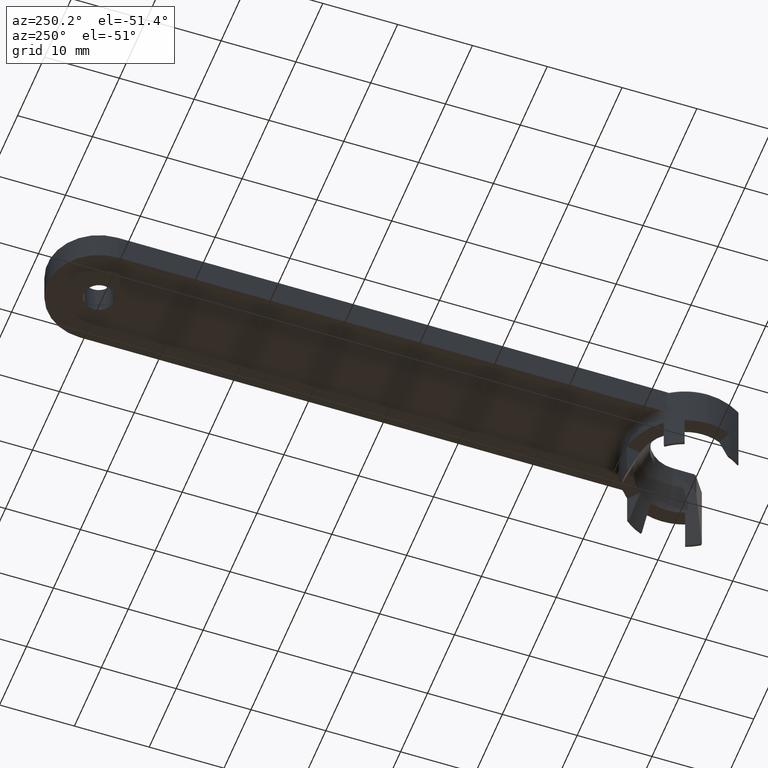
[diagram: clean part render]
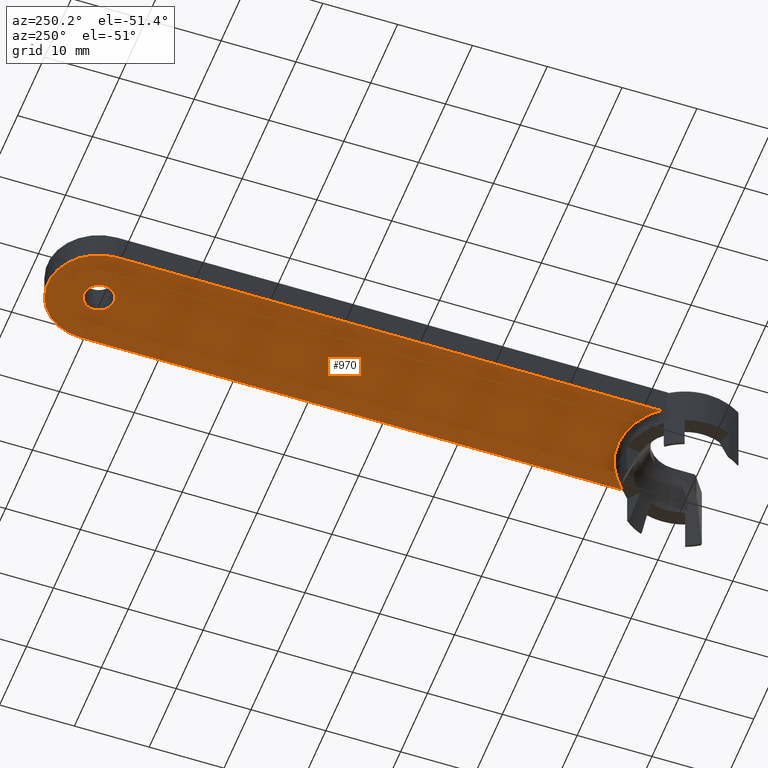
[diagram: same view with one face highlighted and labeled with its STEP entity id]
A machine part, auxiliary view. The second image highlights one B-rep face of the part: STEP entity #970.
In plain terms, the highlighted planar face has unit normal (0, 0, 1).
Its self-contained STEP definition (entity closure, byte-faithful):
#6 = CIRCLE ( 'NONE', #1307, 6.850000000000000500 ) ;
#7 = CARTESIAN_POINT ( 'NONE',  ( -2.391606025375746300, 8.579360147467253800, -4.000000000000000000 ) ) ;
#16 = CARTESIAN_POINT ( 'NONE',  ( 0.3480322512875367300, 8.899978491960400400, -3.999999999999999100 ) ) ;
#35 = CARTESIAN_POINT ( 'NONE',  ( 4.212377540333079700, 7.840764803241903300, -4.000000000000000900 ) ) ;
#36 = CARTESIAN_POINT ( 'NONE',  ( 0.0000000000000000000, 78.33195793500000500, -4.000000000000000000 ) ) ;
#66 = VERTEX_POINT ( 'NONE', #211 ) ;
#69 = VERTEX_POINT ( 'NONE', #126 ) ;
#76 = EDGE_CURVE ( 'NONE', #1267, #774, #6, .T. ) ;
#79 = ORIENTED_EDGE ( 'NONE', *, *, #576, .F. ) ;
#90 = ORIENTED_EDGE ( 'NONE', *, *, #1729, .F. ) ;
#96 = CARTESIAN_POINT ( 'NONE',  ( -3.809812640516542900, 8.043461954156226700, -4.000000000000000900 ) ) ;
#108 = CARTESIAN_POINT ( 'NONE',  ( 0.0000000000000000000, 78.33195793500000500, -4.000000000000000000 ) ) ;
#126 = CARTESIAN_POINT ( 'NONE',  ( 6.849999999605628000, 5.682209071596507700, -4.000000000435521800 ) ) ;
#149 = CARTESIAN_POINT ( 'NONE',  ( 1.725712680964717200, 8.737949633788503000, -4.000000000000001800 ) ) ;
#174 = CARTESIAN_POINT ( 'NONE',  ( -1.213241456055927000, 8.818622504421494300, -4.000000000000000000 ) ) ;
#191 = CARTESIAN_POINT ( 'NONE',  ( 6.357202973045470000, 6.241257031835291800, -4.000000000000000900 ) ) ;
#209 = CARTESIAN_POINT ( 'NONE',  ( 0.0000000000000000000, 78.33195793500000500, -4.000000000000000000 ) ) ;
#211 = CARTESIAN_POINT ( 'NONE',  ( -2.000000000000000000, 78.33195793500000500, -4.000000000000000000 ) ) ;
#214 = DIRECTION ( 'NONE',  ( -0.0000000000000000000, 0.0000000000000000000, -1.000000000000000000 ) ) ;
#216 = CIRCLE ( 'NONE', #616, 2.000000000000000000 ) ;
#226 = VERTEX_POINT ( 'NONE', #289 ) ;
#232 = CARTESIAN_POINT ( 'NONE',  ( -4.668223199302228300, 7.589502870999931300, -4.000000000000000000 ) ) ;
#257 = CARTESIAN_POINT ( 'NONE',  ( -6.850000000000000500, 5.205210584000000500, -4.000000000000000000 ) ) ;
#259 = CARTESIAN_POINT ( 'NONE',  ( -5.357181086907920600, 7.107905588666076500, -3.999999999999999100 ) ) ;
#266 = CARTESIAN_POINT ( 'NONE',  ( 4.034120690082831500, 7.933313645107057600, -4.000000000000000000 ) ) ;
#289 = CARTESIAN_POINT ( 'NONE',  ( 2.000000000000000000, 78.33195793500000500, -4.000000000000000000 ) ) ;
#292 = CARTESIAN_POINT ( 'NONE',  ( -1.469513484128769400, 8.780837044612138000, -4.000000000000000900 ) ) ;
#297 = CARTESIAN_POINT ( 'NONE',  ( 6.849999999999999600, 78.33195793500000500, -4.000000000677499800 ) ) ;
#359 = EDGE_LOOP ( 'NONE', ( #90, #700 ) ) ;
#381 = B_SPLINE_CURVE_WITH_KNOTS ( 'NONE', 3,
 ( #506, #1234, #191, #1826, #973, #1448, #1683, #1171, #1689, #819, #1759, #1135, #35, #902, #266, #1835, #1409, #1280, #1361, #824, #1556, #552, #149, #422, #663, #16, #1716, #1582, #859, #1152, #174, #292, #1438, #687, #625, #7, #1160, #474, #1099, #96, #1302, #1187, #1379, #232, #873, #259, #1730, #1715, #1722, #656, #787, #499, #574 ),
 .UNSPECIFIED., .F., .F.,
 ( 4, 1, 1, 1, 1, 2, 2, 1, 1, 1, 2, 2, 1, 1, 2, 2, 2, 2, 2, 2, 1, 2, 2, 1, 1, 1, 2, 2, 1, 1, 1, 1, 2, 2, 4 ),
 ( 0.0000000000000000000, 0.06250000000000061100, 0.09375000000000091600, 0.1093750000000010700, 0.1171875000000010800, 0.1210937500000011500, 0.1250000000000012200, 0.1875000000000018000, 0.2187500000000020800, 0.2343750000000022200, 0.2421875000000022200, 0.2500000000000022200, 0.3125000000000017800, 0.3437500000000015000, 0.3593750000000013900, 0.3750000000000012800, 0.4375000000000008900, 0.5000000000000004400, 0.5312500000000003300, 0.5625000000000000000, 0.5937499999999997800, 0.6093749999999997800, 0.6249999999999996700, 0.6874999999999991100, 0.7187499999999988900, 0.7343749999999988900, 0.7421874999999987800, 0.7499999999999987800, 0.8124999999999995600, 0.8437500000000000000, 0.8593750000000003300, 0.8671875000000004400, 0.8710937500000006700, 0.8750000000000007800, 1.000000000000000000 ),
 .UNSPECIFIED. ) ;
#391 = DIRECTION ( 'NONE',  ( 1.000000000000000000, 0.0000000000000000000, 0.0000000000000000000 ) ) ;
#395 = VERTEX_POINT ( 'NONE', #1057 ) ;
#422 = CARTESIAN_POINT ( 'NONE',  ( 1.387241542657224200, 8.798085349761571200, -4.000000000000000000 ) ) ;
#474 = CARTESIAN_POINT ( 'NONE',  ( -3.424952198055320400, 8.217767997586861400, -4.000000000000000900 ) ) ;
#499 = CARTESIAN_POINT ( 'NONE',  ( -6.468186086857711500, 6.142492264413063700, -3.999999999999999100 ) ) ;
#506 = CARTESIAN_POINT ( 'NONE',  ( 6.849999999605628000, 5.682209071596507700, -4.000000000435521800 ) ) ;
#550 = CARTESIAN_POINT ( 'NONE',  ( 6.850000000000000500, 41.10540386449999800, -4.000000001354999700 ) ) ;
#552 = CARTESIAN_POINT ( 'NONE',  ( 2.146011970985660000, 8.637824142578054400, -3.999999999999999100 ) ) ;
#574 = CARTESIAN_POINT ( 'NONE',  ( -6.849999999605629800, 5.682209071596507700, -4.000000000435521800 ) ) ;
#576 = EDGE_CURVE ( 'NONE', #1267, #395, #1326, .T. ) ;
#581 = VECTOR ( 'NONE', #1165, 1000.000000000000000 ) ;
#616 = AXIS2_PLACEMENT_3D ( 'NONE', #108, #696, #391 ) ;
#625 = CARTESIAN_POINT ( 'NONE',  ( -1.979538634882903200, 8.677471514158364500, -4.000000000000000000 ) ) ;
#644 = DIRECTION ( 'NONE',  ( 0.0000000000000000000, 0.0000000000000000000, 1.000000000000000000 ) ) ;
#656 = CARTESIAN_POINT ( 'NONE',  ( -5.564161336005820000, 6.946253488742897300, -4.000000000000000900 ) ) ;
#663 = CARTESIAN_POINT ( 'NONE',  ( 0.6959654929811451800, 8.879591206188132800, -4.000000000000000000 ) ) ;
#687 = CARTESIAN_POINT ( 'NONE',  ( -1.893276372950406500, 8.696719513071801800, -4.000000000000000000 ) ) ;
#696 = DIRECTION ( 'NONE',  ( -0.0000000000000000000, 0.0000000000000000000, -1.000000000000000000 ) ) ;
#699 = ORIENTED_EDGE ( 'NONE', *, *, #76, .T. ) ;
#700 = ORIENTED_EDGE ( 'NONE', *, *, #1030, .F. ) ;
#770 = PLANE ( 'NONE',  #1427 ) ;
#772 = EDGE_LOOP ( 'NONE', ( #911, #79, #699, #1367 ) ) ;
#774 = VERTEX_POINT ( 'NONE', #297 ) ;
#787 = CARTESIAN_POINT ( 'NONE',  ( -6.044424340649337400, 6.559938226796711900, -3.999999999999999100 ) ) ;
#819 = CARTESIAN_POINT ( 'NONE',  ( 5.328151278378264500, 7.136145404614937100, -4.000000000000000900 ) ) ;
#824 = CARTESIAN_POINT ( 'NONE',  ( 2.389866090938950600, 8.573591891963424400, -4.000000000000000000 ) ) ;
#830 = CARTESIAN_POINT ( 'NONE',  ( -6.849999999999999600, 78.33195793359504900, -4.000000000677499800 ) ) ;
#859 = CARTESIAN_POINT ( 'NONE',  ( -0.6950256542236461500, 8.874532079613858900, -4.000000000000000000 ) ) ;
#873 = CARTESIAN_POINT ( 'NONE',  ( -5.131587935566458600, 7.274851113894616400, -4.000000000000000900 ) ) ;
#877 = DIRECTION ( 'NONE',  ( 0.0000000000000000000, -1.000000000000000000, 0.0000000000000000000 ) ) ;
#902 = CARTESIAN_POINT ( 'NONE',  ( 4.105600203031857000, 7.896567171075163000, -3.999999999999999100 ) ) ;
#911 = ORIENTED_EDGE ( 'NONE', *, *, #1331, .T. ) ;
#933 = VECTOR ( 'NONE', #877, 1000.000000000000000 ) ;
#970 = ADVANCED_FACE ( 'NONE', ( #1071, #1776 ), #770, .F. ) ;
#973 = CARTESIAN_POINT ( 'NONE',  ( 5.780256530451561400, 6.768207076015231700, -4.000000000000000000 ) ) ;
#988 = LINE ( 'NONE', #550, #581 ) ;
#1030 = EDGE_CURVE ( 'NONE', #66, #226, #216, .T. ) ;
#1057 = CARTESIAN_POINT ( 'NONE',  ( -6.849999999605629800, 5.682209071596507700, -4.000000000435521800 ) ) ;
#1071 = FACE_BOUND ( 'NONE', #359, .T. ) ;
#1099 = CARTESIAN_POINT ( 'NONE',  ( -3.694991696523898500, 8.097538252179688800, -4.000000000000001800 ) ) ;
#1135 = CARTESIAN_POINT ( 'NONE',  ( 4.458431135846372400, 7.705780680799678700, -4.000000000000000900 ) ) ;
#1148 = CARTESIAN_POINT ( 'NONE',  ( -6.850000000000000500, 41.10540386449999800, -4.000000001354999700 ) ) ;
#1152 = CARTESIAN_POINT ( 'NONE',  ( -0.8699655795824443600, 8.859054051528209700, -4.000000000000000000 ) ) ;
#1160 = CARTESIAN_POINT ( 'NONE',  ( -2.876377351175203300, 8.434434355144262000, -4.000000000000000000 ) ) ;
#1165 = DIRECTION ( 'NONE',  ( 0.0000000000000000000, 1.000000000000000000, 0.0000000000000000000 ) ) ;
#1171 = CARTESIAN_POINT ( 'NONE',  ( 5.607794763363908300, 6.911075065685714100, -4.000000000000001800 ) ) ;
#1187 = CARTESIAN_POINT ( 'NONE',  ( -3.926202136806593100, 7.987271803729677300, -3.999999999999999100 ) ) ;
#1234 = CARTESIAN_POINT ( 'NONE',  ( 6.659207786933810000, 5.912212345610534200, -4.000000000000000900 ) ) ;
#1267 = VERTEX_POINT ( 'NONE', #830 ) ;
#1280 = CARTESIAN_POINT ( 'NONE',  ( 3.193671935060908000, 8.319474964975563900, -3.999999999999999100 ) ) ;
#1293 = DIRECTION ( 'NONE',  ( 1.000000000000000000, 0.0000000000000000000, 0.0000000000000000000 ) ) ;
#1302 = CARTESIAN_POINT ( 'NONE',  ( -3.886157654370141500, 8.006844585634466300, -4.000000000000000900 ) ) ;
#1307 = AXIS2_PLACEMENT_3D ( 'NONE', #36, #1612, #1293 ) ;
#1326 = LINE ( 'NONE', #1148, #933 ) ;
#1331 = EDGE_CURVE ( 'NONE', #69, #395, #381, .T. ) ;
#1348 = CIRCLE ( 'NONE', #1446, 2.000000000000000000 ) ;
#1361 = CARTESIAN_POINT ( 'NONE',  ( 2.633622606120003400, 8.504470668296420400, -4.000000000000000000 ) ) ;
#1364 = DIRECTION ( 'NONE',  ( 1.000000000000000000, 0.0000000000000000000, 0.0000000000000000000 ) ) ;
#1367 = ORIENTED_EDGE ( 'NONE', *, *, #1395, .F. ) ;
#1379 = CARTESIAN_POINT ( 'NONE',  ( -4.250176110650662600, 7.826222731344322400, -4.000000000000000000 ) ) ;
#1395 = EDGE_CURVE ( 'NONE', #69, #774, #988, .T. ) ;
#1409 = CARTESIAN_POINT ( 'NONE',  ( 3.658772720184728700, 8.120256622532789200, -3.999999999999999100 ) ) ;
#1427 = AXIS2_PLACEMENT_3D ( 'NONE', #257, #644, #1766 ) ;
#1438 = CARTESIAN_POINT ( 'NONE',  ( -1.724008193278205400, 8.731858885583800900, -4.000000000000000000 ) ) ;
#1446 = AXIS2_PLACEMENT_3D ( 'NONE', #209, #214, #1364 ) ;
#1448 = CARTESIAN_POINT ( 'NONE',  ( 5.680062288495130400, 6.851958903652443300, -4.000000000000000900 ) ) ;
#1556 = CARTESIAN_POINT ( 'NONE',  ( 2.226531664327940700, 8.617414341255912500, -3.999999999999998200 ) ) ;
#1582 = CARTESIAN_POINT ( 'NONE',  ( -0.3478244816172517700, 8.894919320145904300, -4.000000000000000000 ) ) ;
#1612 = DIRECTION ( 'NONE',  ( -0.0000000000000000000, 0.0000000000000000000, -1.000000000000000000 ) ) ;
#1683 = CARTESIAN_POINT ( 'NONE',  ( 5.636751199965671000, 6.887478476542520800, -4.000000000000000000 ) ) ;
#1689 = CARTESIAN_POINT ( 'NONE',  ( 5.594374978014625900, 6.921947063218535600, -4.000000000000000900 ) ) ;
#1715 = CARTESIAN_POINT ( 'NONE',  ( -5.515818123827093800, 6.984707858618095100, -3.999999999999999100 ) ) ;
#1716 = CARTESIAN_POINT ( 'NONE',  ( -0.1740161256437675900, 8.900010753376268000, -4.000000000000001800 ) ) ;
#1722 = CARTESIAN_POINT ( 'NONE',  ( -5.547320810115087900, 6.959713301838322200, -4.000000000000000900 ) ) ;
#1729 = EDGE_CURVE ( 'NONE', #226, #66, #1348, .T. ) ;
#1730 = CARTESIAN_POINT ( 'NONE',  ( -5.468455358380995600, 7.022027914382834800, -4.000000000000000000 ) ) ;
#1759 = CARTESIAN_POINT ( 'NONE',  ( 4.938164227448059900, 7.416698045923408400, -4.000000000000000000 ) ) ;
#1766 = DIRECTION ( 'NONE',  ( 1.000000000000000000, 0.0000000000000000000, 0.0000000000000000000 ) ) ;
#1776 = FACE_OUTER_BOUND ( 'NONE', #772, .T. ) ;
#1826 = CARTESIAN_POINT ( 'NONE',  ( 5.977185155915178100, 6.597212123832718200, -4.000000000000000900 ) ) ;
#1835 = CARTESIAN_POINT ( 'NONE',  ( 4.000127560614833700, 7.950517567331116800, -4.000000000000000000 ) ) ;